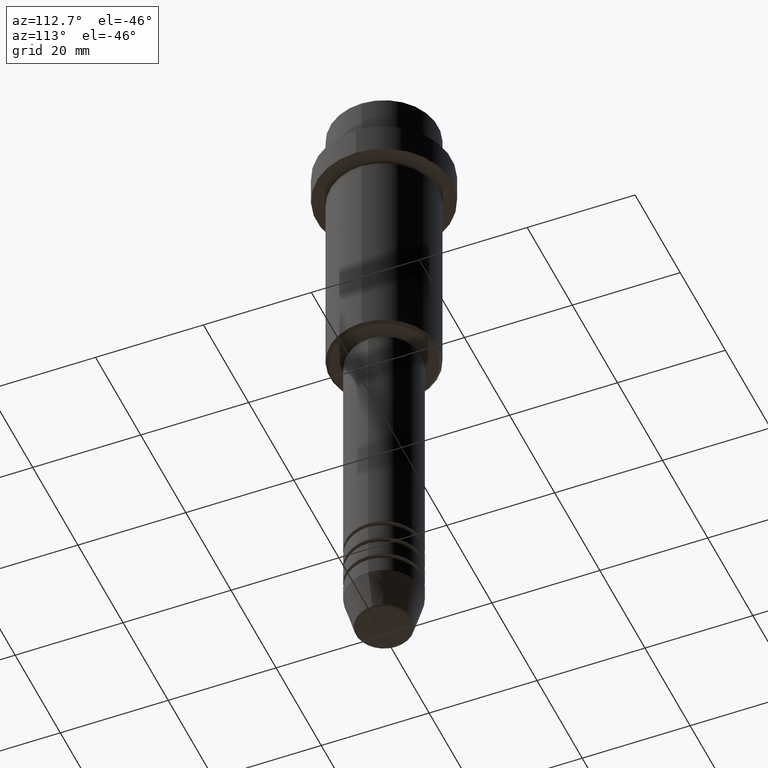
[diagram: clean part render]
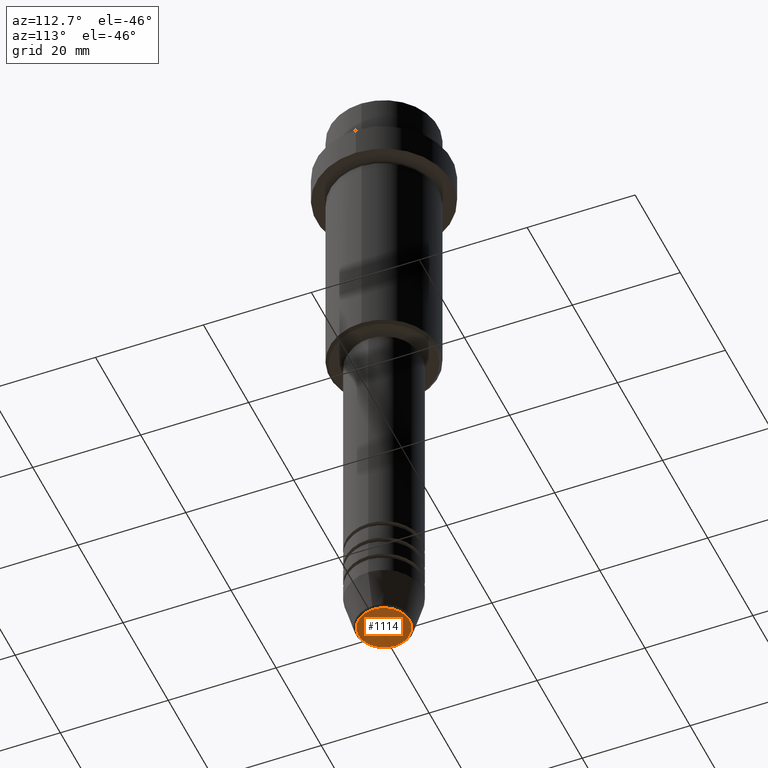
[diagram: same view with one face highlighted and labeled with its STEP entity id]
A machine part, auxiliary view. The second image highlights one B-rep face of the part: STEP entity #1114.
In plain terms, the highlighted planar face has unit normal (0, -0, 1).
Its self-contained STEP definition (entity closure, byte-faithful):
#32 = EDGE_LOOP ( 'NONE', ( #1101, #796 ) ) ;
#132 = EDGE_CURVE ( 'NONE', #1305, #1352, #220, .T. ) ;
#220 = CIRCLE ( 'NONE', #1153, 4.740692158992659166 ) ;
#290 = CARTESIAN_POINT ( 'NONE',  ( 0.000000000000000000, 0.000000000000000000, -120.0000000000000000 ) ) ;
#331 = CARTESIAN_POINT ( 'NONE',  ( 4.740692158992659166, 0.000000000000000000, -120.0000000000000000 ) ) ;
#397 = PLANE ( 'NONE',  #527 ) ;
#409 = DIRECTION ( 'NONE',  ( 1.000000000000000000, 0.000000000000000000, 0.000000000000000000 ) ) ;
#503 = CARTESIAN_POINT ( 'NONE',  ( 0.000000000000000000, 0.000000000000000000, -120.0000000000000000 ) ) ;
#527 = AXIS2_PLACEMENT_3D ( 'NONE', #290, #715, #1381 ) ;
#605 = AXIS2_PLACEMENT_3D ( 'NONE', #503, #1388, #409 ) ;
#625 = CIRCLE ( 'NONE', #605, 4.740692158992659166 ) ;
#634 = CARTESIAN_POINT ( 'NONE',  ( 0.000000000000000000, 0.000000000000000000, -120.0000000000000000 ) ) ;
#715 = DIRECTION ( 'NONE',  ( 0.000000000000000000, -0.000000000000000000, 1.000000000000000000 ) ) ;
#728 = DIRECTION ( 'NONE',  ( 1.000000000000000000, 0.000000000000000000, 0.000000000000000000 ) ) ;
#796 = ORIENTED_EDGE ( 'NONE', *, *, #132, .T. ) ;
#1028 = FACE_OUTER_BOUND ( 'NONE', #32, .T. ) ;
#1101 = ORIENTED_EDGE ( 'NONE', *, *, #1129, .T. ) ;
#1114 = ADVANCED_FACE ( 'NONE', ( #1028 ), #397, .F. ) ;
#1129 = EDGE_CURVE ( 'NONE', #1352, #1305, #625, .T. ) ;
#1153 = AXIS2_PLACEMENT_3D ( 'NONE', #634, #1395, #728 ) ;
#1268 = CARTESIAN_POINT ( 'NONE',  ( -4.740692158992659166, 6.101402971097984690E-16, -120.0000000000000000 ) ) ;
#1305 = VERTEX_POINT ( 'NONE', #1268 ) ;
#1352 = VERTEX_POINT ( 'NONE', #331 ) ;
#1381 = DIRECTION ( 'NONE',  ( 1.000000000000000000, 0.000000000000000000, 0.000000000000000000 ) ) ;
#1388 = DIRECTION ( 'NONE',  ( 0.000000000000000000, 0.000000000000000000, -1.000000000000000000 ) ) ;
#1395 = DIRECTION ( 'NONE',  ( 0.000000000000000000, 0.000000000000000000, -1.000000000000000000 ) ) ;